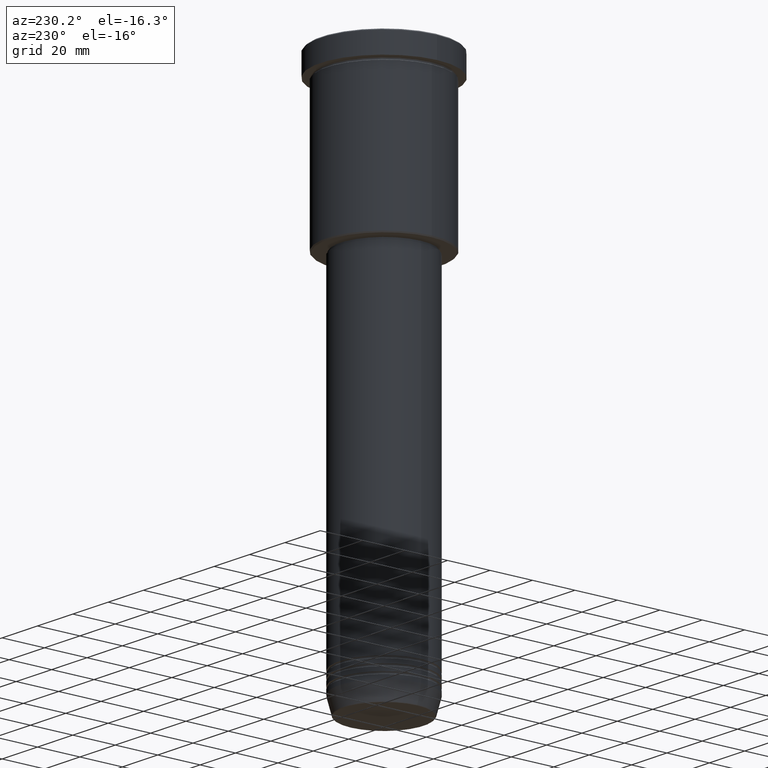
[diagram: clean part render]
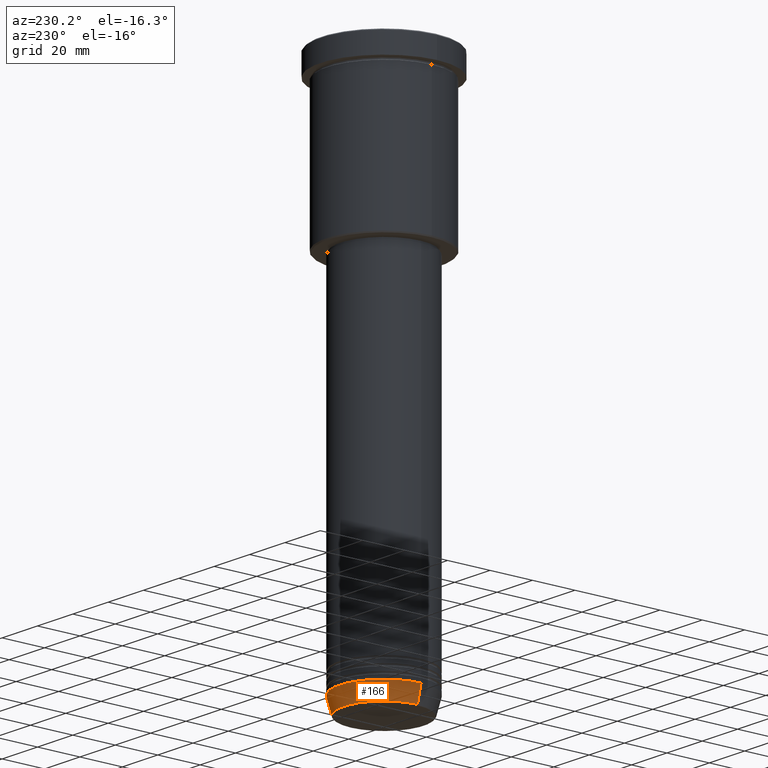
[diagram: same view with one face highlighted and labeled with its STEP entity id]
A machine part, auxiliary view. The second image highlights one B-rep face of the part: STEP entity #166.
In plain terms, the highlighted conical surface has half-angle 15 deg.
Its self-contained STEP definition (entity closure, byte-faithful):
#45 = CARTESIAN_POINT ( 'NONE',  ( -18.95570587970606624, 2.446581365662756125E-15, -250.6294095225512422 ) ) ;
#83 = CARTESIAN_POINT ( 'NONE',  ( 0.000000000000000000, 0.000000000000000000, -243.0000000000000284 ) ) ;
#166 = ADVANCED_FACE ( 'NONE', ( #1161 ), #606, .T. ) ;
#176 = VERTEX_POINT ( 'NONE', #1173 ) ;
#196 = AXIS2_PLACEMENT_3D ( 'NONE', #206, #753, #504 ) ;
#204 = ORIENTED_EDGE ( 'NONE', *, *, #656, .F. ) ;
#206 = CARTESIAN_POINT ( 'NONE',  ( 0.000000000000000000, 0.000000000000000000, -250.6294095225512422 ) ) ;
#220 = ORIENTED_EDGE ( 'NONE', *, *, #1142, .T. ) ;
#239 = CARTESIAN_POINT ( 'NONE',  ( 21.00000000000000000, 0.000000000000000000, -243.0000000000000284 ) ) ;
#249 = CIRCLE ( 'NONE', #1101, 21.00000000000000000 ) ;
#274 = DIRECTION ( 'NONE',  ( 1.000000000000000000, 0.000000000000000000, 0.000000000000000000 ) ) ;
#499 = ORIENTED_EDGE ( 'NONE', *, *, #1175, .F. ) ;
#504 = DIRECTION ( 'NONE',  ( 1.000000000000000000, 0.000000000000000000, 0.000000000000000000 ) ) ;
#531 = DIRECTION ( 'NONE',  ( 1.000000000000000000, 0.000000000000000000, 0.000000000000000000 ) ) ;
#595 = EDGE_CURVE ( 'NONE', #651, #1025, #714, .T. ) ;
#606 = CONICAL_SURFACE ( 'NONE', #849, 21.00000000000000000, 0.2617993877991500740 ) ;
#614 = CARTESIAN_POINT ( 'NONE',  ( 18.95570587970606624, 0.000000000000000000, -250.6294095225512422 ) ) ;
#618 = DIRECTION ( 'NONE',  ( 0.2588190451025213501, 0.000000000000000000, 0.9659258262890680902 ) ) ;
#632 = CARTESIAN_POINT ( 'NONE',  ( 0.000000000000000000, 0.000000000000000000, -243.0000000000000284 ) ) ;
#651 = VERTEX_POINT ( 'NONE', #614 ) ;
#656 = EDGE_CURVE ( 'NONE', #651, #176, #788, .T. ) ;
#672 = EDGE_LOOP ( 'NONE', ( #1102, #220, #499, #204 ) ) ;
#713 = VECTOR ( 'NONE', #967, 1000.000000000000000 ) ;
#714 = CIRCLE ( 'NONE', #196, 18.95570587970606624 ) ;
#716 = VECTOR ( 'NONE', #618, 1000.000000000000000 ) ;
#753 = DIRECTION ( 'NONE',  ( -0.000000000000000000, -0.000000000000000000, 1.000000000000000000 ) ) ;
#788 = LINE ( 'NONE', #239, #716 ) ;
#849 = AXIS2_PLACEMENT_3D ( 'NONE', #632, #1152, #531 ) ;
#967 = DIRECTION ( 'NONE',  ( -0.2588190451025213501, 3.169619151431772337E-17, 0.9659258262890680902 ) ) ;
#1025 = VERTEX_POINT ( 'NONE', #45 ) ;
#1058 = CARTESIAN_POINT ( 'NONE',  ( -21.00000000000000000, 2.571758278209441661E-15, -243.0000000000000284 ) ) ;
#1083 = DIRECTION ( 'NONE',  ( -0.000000000000000000, -0.000000000000000000, 1.000000000000000000 ) ) ;
#1101 = AXIS2_PLACEMENT_3D ( 'NONE', #83, #1083, #274 ) ;
#1102 = ORIENTED_EDGE ( 'NONE', *, *, #595, .T. ) ;
#1142 = EDGE_CURVE ( 'NONE', #1025, #1149, #1171, .T. ) ;
#1149 = VERTEX_POINT ( 'NONE', #1167 ) ;
#1152 = DIRECTION ( 'NONE',  ( -0.000000000000000000, -0.000000000000000000, 1.000000000000000000 ) ) ;
#1161 = FACE_OUTER_BOUND ( 'NONE', #672, .T. ) ;
#1167 = CARTESIAN_POINT ( 'NONE',  ( -21.00000000000000000, 2.571758278209441661E-15, -243.0000000000000284 ) ) ;
#1171 = LINE ( 'NONE', #1058, #713 ) ;
#1173 = CARTESIAN_POINT ( 'NONE',  ( 21.00000000000000000, 0.000000000000000000, -243.0000000000000284 ) ) ;
#1175 = EDGE_CURVE ( 'NONE', #176, #1149, #249, .T. ) ;